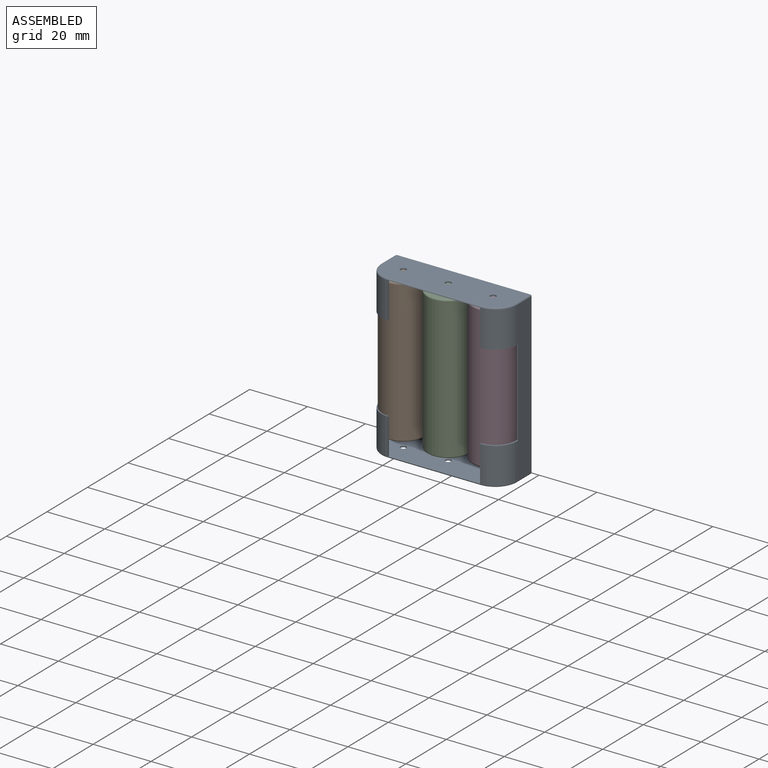
[diagram: assembled view]
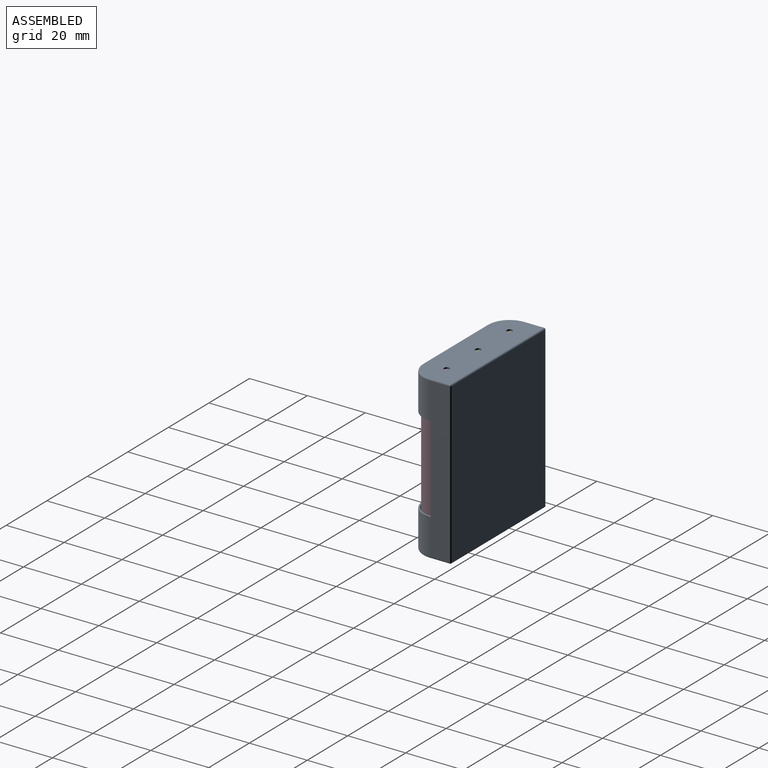
[diagram: assembled view, second angle]
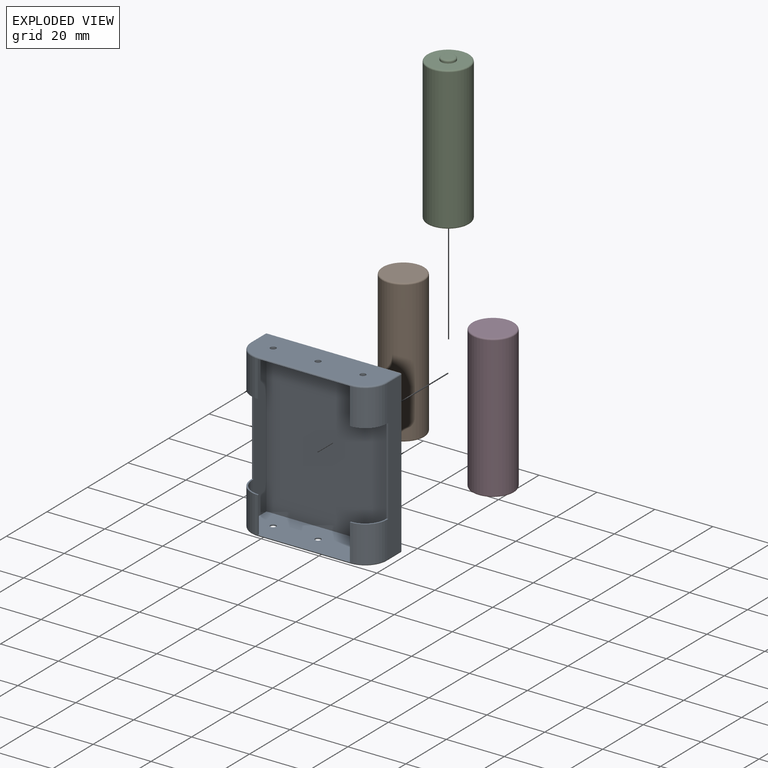
[diagram: exploded view]
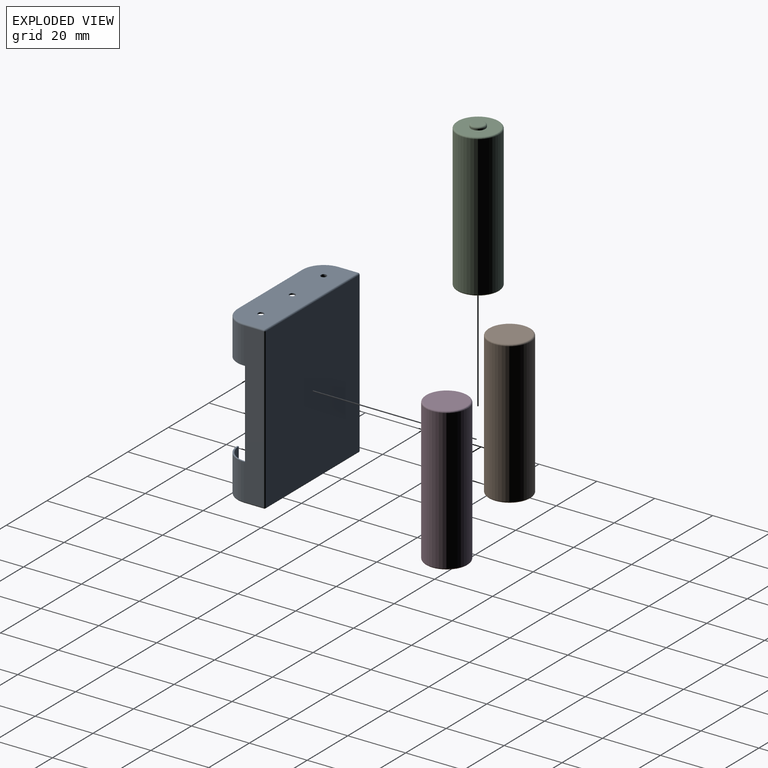
[diagram: exploded view, second angle]
ASSEMBLY  parts=4 mates=3
PART A: 52 faces, bbox 48.3x56x15.5 mm
  f0: cylinder r=7.6mm len=12.5mm, axis (0,1,0), area 149.2mm2, adj f2,f11,f26,f51
  f1: cylinder r=7.6mm len=12.5mm, axis (0,-1,0), area 149.2mm2, adj f3,f13,f32,f46
  f2: plane 12.5x0.5mm, normal (1,0,0), area 6.3mm2, adj f0,f4,f37,f51
  f3: plane 12.5x0.5mm, normal (-1,0,0), area 6.3mm2, adj f1,f5,f37,f46
  f4: cylinder r=7.1mm len=12.5mm, axis (0,1,0), area 139.4mm2, adj f2,f37,f38,f51
  f5: cylinder r=7.1mm len=12.5mm, axis (0,-1,0), area 139.4mm2, adj f3,f37,f40,f46
  f6: cylinder r=1mm len=2mm, axis (0,-1,0), area 3.1mm2, adj f10,f37
  f7: cylinder r=1mm len=2mm, axis (0,-1,0), area 3.1mm2, adj f12,f39
  f8: cylinder r=1mm len=2mm, axis (0,-1,0), area 3.1mm2, adj f10,f37
  f9: cylinder r=1mm len=2mm, axis (0,-1,0), area 3.1mm2, adj f12,f39
  f10: plane 46x13.9mm, normal (0,1,0), area 608.3mm2, adj f6,f8,f22,f26,f29,f30,f32,f34
  f11: plane 55x6.8mm, normal (-1,0,0), area 362mm2, adj f0,f15,f18,f22,f23,f49,f50,f51
  f12: plane 46x13.9mm, normal (0,-1,0), area 608.3mm2, adj f7,f9,f17,f18,f19,f21,f24,f25
  f13: plane 55x6.8mm, normal (1,0,0), area 362mm2, adj f1,f16,f25,f31,f34,f46,f47,f48
  f14: plane 55x46mm, normal (0,0,-1), area 2530mm2, adj f23,f24,f30,f31
  f15: cylinder r=7.6mm len=12.5mm, axis (0,1,0), area 149.2mm2, adj f11,f17,f35,f50
  f16: cylinder r=7.6mm len=12.5mm, axis (0,-1,0), area 149.2mm2, adj f13,f21,f36,f47
  f17: torus R=7.1mm, axis (0,1,0), area 9.2mm2, adj f12,f15,f18,f19
  f18: cylinder r=0.5mm len=6.8mm, axis (0,0,-1), area 5.3mm2, adj f11,f12,f17,f20
  f19: cylinder r=0.5mm len=31.8mm, axis (-1,0,0), area 25mm2, adj f12,f17,f21,f39
  f20: sphere r=0.5mm, area 0.4mm2, adj f18,f23,f24
  f21: torus R=7.1mm, axis (0,1,0), area 9.2mm2, adj f12,f16,f19,f25
  f22: cylinder r=0.5mm len=6.8mm, axis (0,0,1), area 5.3mm2, adj f10,f11,f26,f27
  f23: cylinder r=0.5mm len=55mm, axis (0,-1,0), area 43.2mm2, adj f11,f14,f20,f27
  f24: cylinder r=0.5mm len=46mm, axis (1,0,0), area 36.1mm2, adj f12,f14,f20,f28
  f25: cylinder r=0.5mm len=6.8mm, axis (0,0,1), area 5.3mm2, adj f12,f13,f21,f28
  f26: torus R=7.1mm, axis (0,1,0), area 9.2mm2, adj f0,f10,f22,f29
  f27: sphere r=0.5mm, area 0.4mm2, adj f22,f23,f30
  f28: sphere r=0.5mm, area 0.4mm2, adj f24,f25,f31
  f29: cylinder r=0.5mm len=31.8mm, axis (1,0,0), area 25mm2, adj f10,f26,f32,f37
  f30: cylinder r=0.5mm len=46mm, axis (-1,0,0), area 36.1mm2, adj f10,f14,f27,f33
  f31: cylinder r=0.5mm len=55mm, axis (0,1,0), area 43.2mm2, adj f13,f14,f28,f33
  f32: torus R=7.1mm, axis (0,1,0), area 9.2mm2, adj f1,f10,f29,f34
  f33: sphere r=0.5mm, area 0.4mm2, adj f30,f31,f34
  f34: cylinder r=0.5mm len=6.8mm, axis (0,0,-1), area 5.3mm2, adj f10,f13,f32,f33
  f35: plane 12.5x0.5mm, normal (1,0,0), area 6.3mm2, adj f15,f39,f42,f50
  f36: plane 12.5x0.5mm, normal (-1,0,0), area 6.3mm2, adj f16,f39,f43,f47
  f37: plane 46x14.4mm, normal (0,-1,0), area 624.2mm2, adj f2,f3,f4,f5,f6,f8,f29,f38
  f38: plane 55x6.8mm, normal (1,0,0), area 362mm2, adj f4,f37,f39,f41,f42,f49,f50,f51
  f39: plane 46x14.4mm, normal (0,1,0), area 624.2mm2, adj f7,f9,f19,f35,f36,f38,f40,f41
  f40: plane 55x6.8mm, normal (-1,0,0), area 362mm2, adj f5,f37,f39,f41,f43,f46,f47,f48
  f41: plane 55x46mm, normal (0,0,1), area 2530mm2, adj f37,f38,f39,f40
  f42: cylinder r=7.1mm len=12.5mm, axis (0,1,0), area 139.4mm2, adj f35,f38,f39,f50
  f43: cylinder r=7.1mm len=12.5mm, axis (0,-1,0), area 139.4mm2, adj f36,f39,f40,f47
  f44: cylinder r=1mm len=2mm, axis (0,-1,0), area 3.1mm2, adj f12,f39
  f45: cylinder r=1mm len=2mm, axis (0,-1,0), area 3.1mm2, adj f10,f37
  f46: plane 8x7.6mm, normal (0,-1,0), area 6mm2, adj f1,f3,f5,f13,f40,f48
  f47: plane 8x7.6mm, normal (0,1,0), area 6mm2, adj f13,f16,f36,f40,f43,f48
  f48: plane 30x0.5mm, normal (0,0,1), area 15mm2, adj f13,f40,f46,f47
  f49: plane 30x0.5mm, normal (0,0,1), area 15mm2, adj f11,f38,f50,f51
  f50: plane 8x7.6mm, normal (0,1,0), area 6mm2, adj f11,f15,f35,f38,f42,f49
  f51: plane 8x7.6mm, normal (0,-1,0), area 6mm2, adj f0,f2,f4,f11,f38,f49
PART B: 8 faces, bbox 15.7x15.7x50.5 mm
  f0: cylinder r=7.25mm len=48.5mm, axis (0,0,-1), area 2209.3mm2, adj f6,f7
  f1: plane 13.5x13.5mm, normal (0,0,-1), area 143.1mm2, adj f7
  f2: cylinder r=2.5mm len=5mm, axis (0,0,1), area 7.9mm2, adj f3,f5
  f3: plane 13.5x13.5mm, normal (0,0,1), area 123.5mm2, adj f2,f6
  f4: plane 4x4mm, normal (0,0,1), area 12.6mm2, adj f5
  f5: torus R=2mm, axis (0,0,1), area 11.4mm2, adj f2,f4
  f6: torus R=6.75mm, axis (0,0,1), area 34.9mm2, adj f0,f3
  f7: torus R=6.75mm, axis (0,0,1), area 34.9mm2, adj f0,f1
PART C: same geometry as B
PART D: same geometry as B
PLACE A rot(axis=(1,0,0),90deg) t=(-19.13,4.68,-7.73)mm
PLACE B rot(axis=(1,0,0),180deg) t=(-35.03,-2.62,47.27)mm
PLACE C rot(axis=(-0.91,-0.24,-0.34),0deg) t=(-19.53,-2.62,-3.23)mm
PLACE D rot(axis=(1,0,0),180deg) t=(-4.03,-2.62,47.27)mm
MATE fastened A.f0 <-> B.f2  axis (0,0,1) through (-35.03,-2.62,-7.23)mm
MATE fastened A.f8 <-> C.f0  axis (0,0,1) through (-19.53,-2.62,-7.23)mm
MATE fastened D.f2 <-> A.f6  axis (0,0,-1) through (-4.03,-2.62,-3.23)mm
